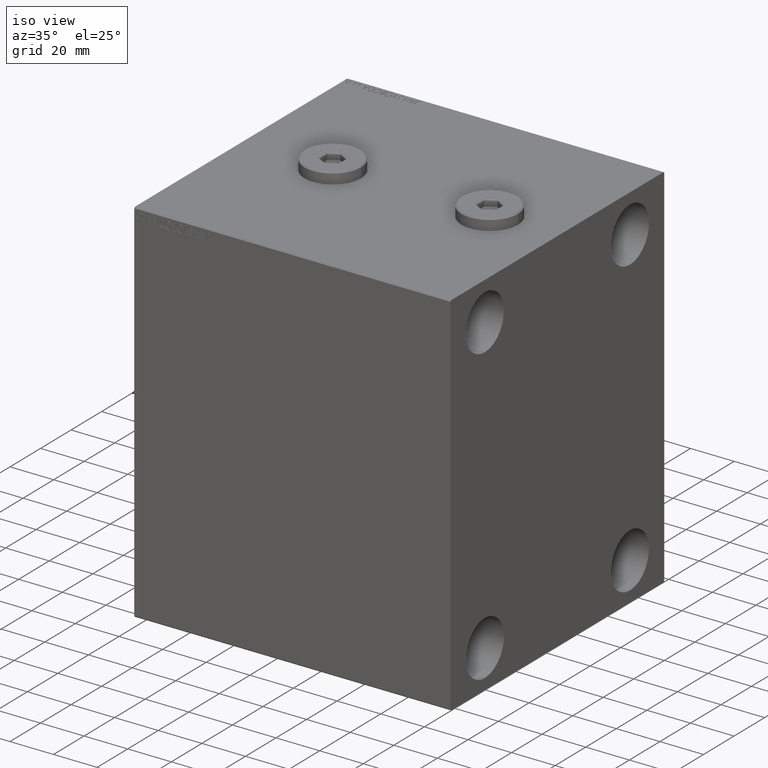
[diagram: clean part render]
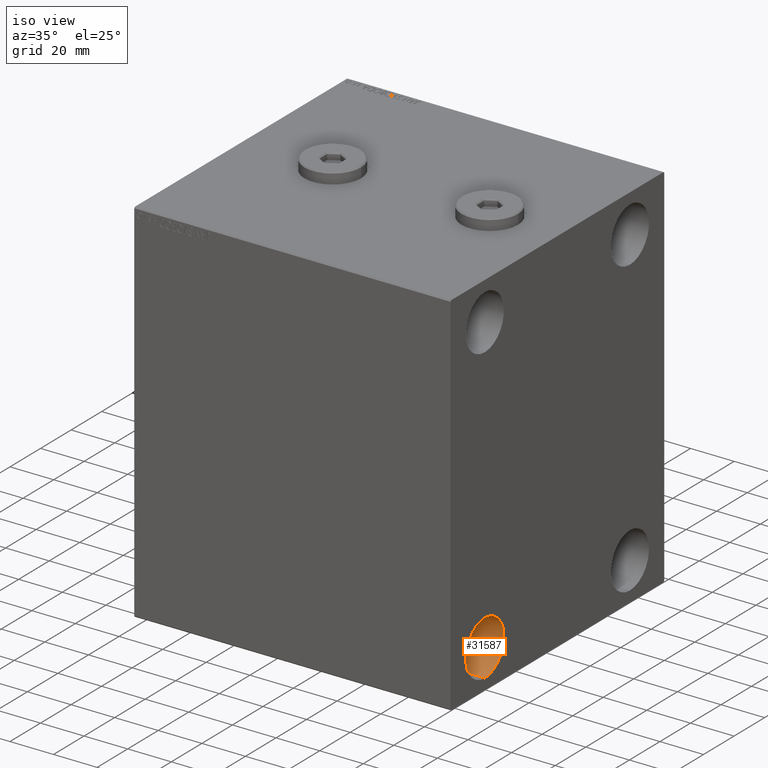
[diagram: same view with one face highlighted and labeled with its STEP entity id]
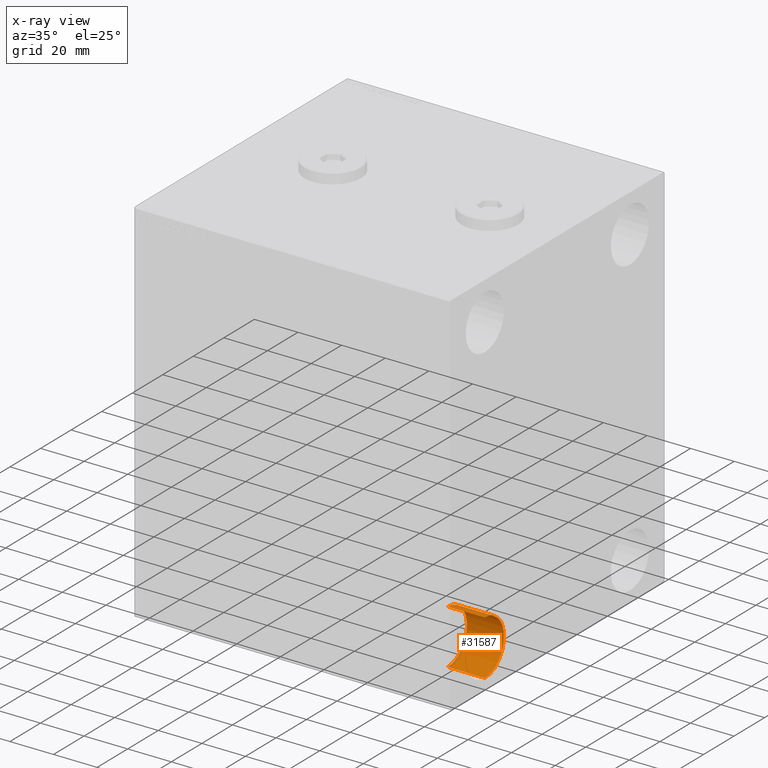
[diagram: x-ray of the same camera — body ghosted, the highlighted face saturated]
A machine part, iso view. The second image highlights one B-rep face of the part: STEP entity #31587.
The next image is the same camera in x-ray: the body ghosted, the highlighted face saturated — about 5% of this face is hidden behind the body in this view.
In plain terms, the highlighted cylindrical surface (edge-blend (fillet) strip) has radius 12.5 mm, axis along (1, 0, 0).
Its self-contained STEP definition (entity closure, byte-faithful):
#1590 = ORIENTED_EDGE ( 'NONE', *, *, #16655, .T. ) ;
#1741 = CARTESIAN_POINT ( 'NONE',  ( 128.0000000000000000, -47.49999999999999289, -80.00000000000000000 ) ) ;
#3903 = CARTESIAN_POINT ( 'NONE',  ( 128.0000000000000000, -47.49999999999999289, -67.50000000000000000 ) ) ;
#4442 = AXIS2_PLACEMENT_3D ( 'NONE', #21224, #24866, #7545 ) ;
#4726 = EDGE_CURVE ( 'NONE', #25585, #45091, #39446, .T. ) ;
#5991 = EDGE_CURVE ( 'NONE', #28148, #27332, #31406, .T. ) ;
#6632 = AXIS2_PLACEMENT_3D ( 'NONE', #23804, #37738, #34301 ) ;
#6915 = EDGE_CURVE ( 'NONE', #28148, #25585, #42961, .T. ) ;
#6967 = EDGE_LOOP ( 'NONE', ( #37147, #27768, #1590, #30023 ) ) ;
#7545 = DIRECTION ( 'NONE',  ( 0.000000000000000000, 0.000000000000000000, -1.000000000000000000 ) ) ;
#8956 = CARTESIAN_POINT ( 'NONE',  ( 128.0000000000000000, -47.49999999999999289, -55.00000000000000711 ) ) ;
#10724 = CARTESIAN_POINT ( 'NONE',  ( 128.0000000000000000, -47.49999999999999289, -80.00000000000000000 ) ) ;
#12157 = DIRECTION ( 'NONE',  ( 1.000000000000000000, -0.000000000000000000, -0.000000000000000000 ) ) ;
#13974 = AXIS2_PLACEMENT_3D ( 'NONE', #3903, #31724, #31953 ) ;
#14987 = CARTESIAN_POINT ( 'NONE',  ( 145.0000000000000000, -47.49999999999999289, -55.00000000000000711 ) ) ;
#15077 = VECTOR ( 'NONE', #19752, 1000.000000000000000 ) ;
#16655 = EDGE_CURVE ( 'NONE', #27332, #45091, #27035, .T. ) ;
#16977 = VECTOR ( 'NONE', #12157, 1000.000000000000000 ) ;
#19752 = DIRECTION ( 'NONE',  ( 1.000000000000000000, -0.000000000000000000, -0.000000000000000000 ) ) ;
#21224 = CARTESIAN_POINT ( 'NONE',  ( 128.0000000000000000, -47.49999999999999289, -67.50000000000000000 ) ) ;
#23804 = CARTESIAN_POINT ( 'NONE',  ( 145.0000000000000000, -47.49999999999999289, -67.50000000000000000 ) ) ;
#23842 = CARTESIAN_POINT ( 'NONE',  ( 145.0000000000000000, -47.49999999999999289, -80.00000000000000000 ) ) ;
#24866 = DIRECTION ( 'NONE',  ( 1.000000000000000000, -0.000000000000000000, -0.000000000000000000 ) ) ;
#25585 = VERTEX_POINT ( 'NONE', #14987 ) ;
#27035 = LINE ( 'NONE', #1741, #15077 ) ;
#27332 = VERTEX_POINT ( 'NONE', #10724 ) ;
#27768 = ORIENTED_EDGE ( 'NONE', *, *, #5991, .T. ) ;
#27837 = FACE_OUTER_BOUND ( 'NONE', #6967, .T. ) ;
#28148 = VERTEX_POINT ( 'NONE', #32656 ) ;
#30023 = ORIENTED_EDGE ( 'NONE', *, *, #4726, .F. ) ;
#31406 = CIRCLE ( 'NONE', #13974, 12.49999999999999645 ) ;
#31587 = ADVANCED_FACE ( 'NONE', ( #27837 ), #42221, .F. ) ;
#31724 = DIRECTION ( 'NONE',  ( -1.000000000000000000, -0.000000000000000000, -0.000000000000000000 ) ) ;
#31953 = DIRECTION ( 'NONE',  ( 0.000000000000000000, 0.000000000000000000, 1.000000000000000000 ) ) ;
#32656 = CARTESIAN_POINT ( 'NONE',  ( 128.0000000000000000, -47.49999999999999289, -55.00000000000000711 ) ) ;
#34301 = DIRECTION ( 'NONE',  ( 0.000000000000000000, 0.000000000000000000, 1.000000000000000000 ) ) ;
#37147 = ORIENTED_EDGE ( 'NONE', *, *, #6915, .F. ) ;
#37738 = DIRECTION ( 'NONE',  ( -1.000000000000000000, -0.000000000000000000, -0.000000000000000000 ) ) ;
#39446 = CIRCLE ( 'NONE', #6632, 12.49999999999999645 ) ;
#42221 = CYLINDRICAL_SURFACE ( 'NONE', #4442, 12.49999999999999645 ) ;
#42961 = LINE ( 'NONE', #8956, #16977 ) ;
#45091 = VERTEX_POINT ( 'NONE', #23842 ) ;